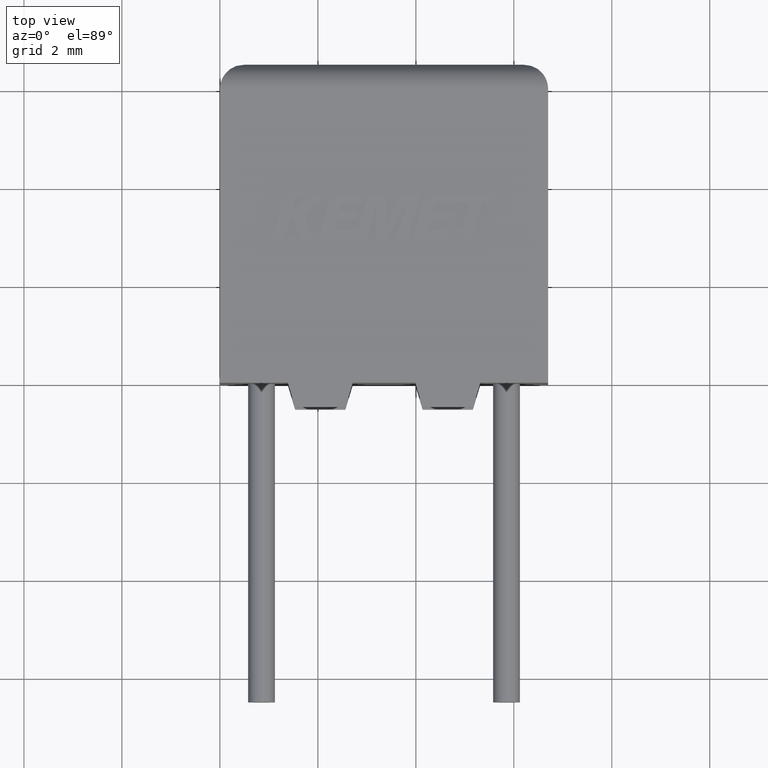
[diagram: clean part render]
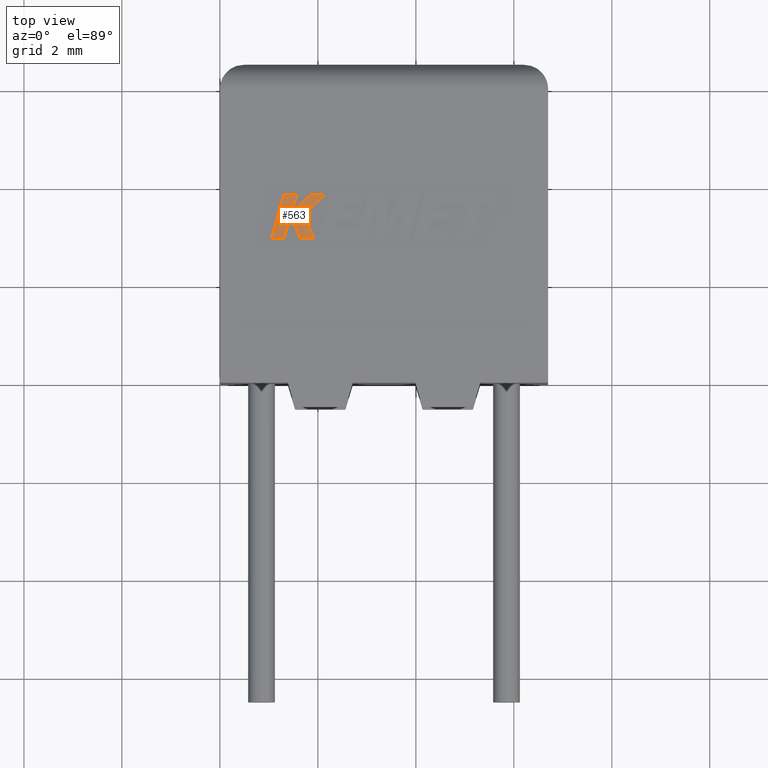
[diagram: same view with one face highlighted and labeled with its STEP entity id]
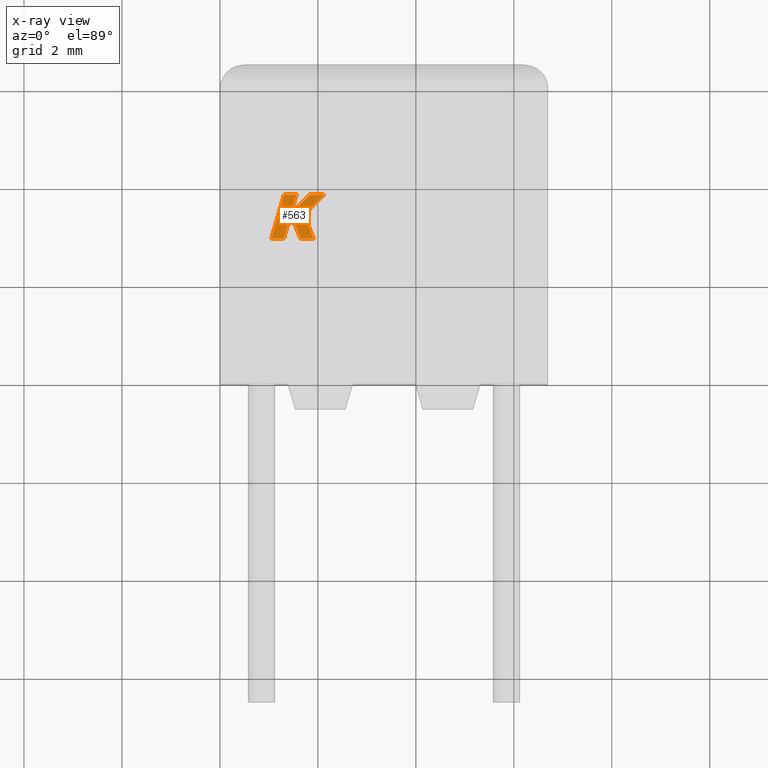
[diagram: x-ray of the same camera — body ghosted, the highlighted face saturated]
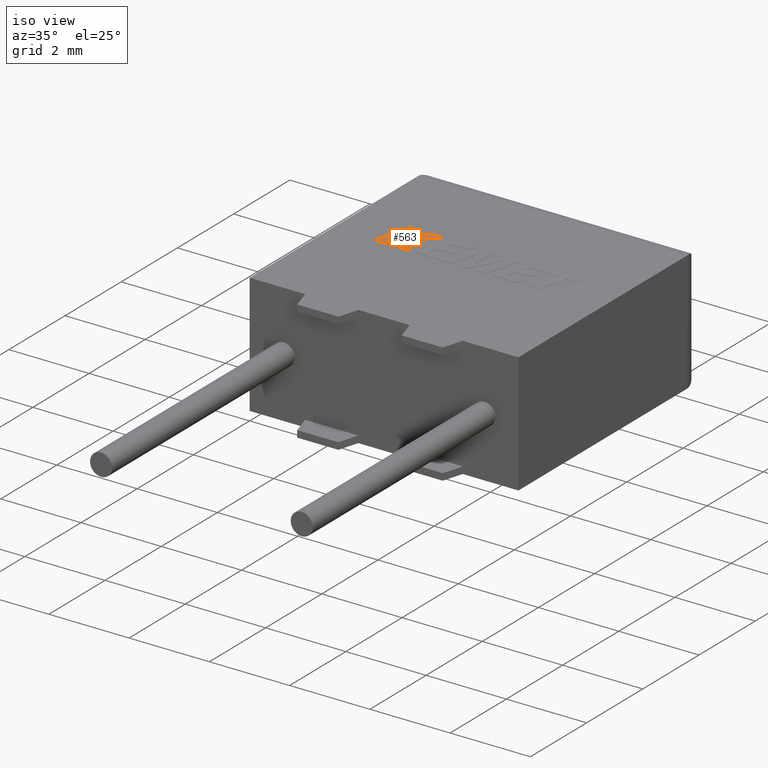
[diagram: same view with one face highlighted and labeled with its STEP entity id]
A machine part, top view. The second image highlights one B-rep face of the part: STEP entity #563.
The next image is the same camera in x-ray: the body ghosted, the highlighted face saturated — about 0% of this face is hidden behind the body in this view.
A second angle (iso view) of the same face is appended — the face is thin or edge-on in the first view.
In plain terms, the highlighted planar face has unit normal (0, 0, -1).
Its self-contained STEP definition (entity closure, byte-faithful):
#11 = LINE ( 'NONE', #1741, #1677 ) ;
#25 = CARTESIAN_POINT ( 'NONE',  ( 1.713488078699167971, 3.428922874861866532, 3.004999999999999893 ) ) ;
#111 = VECTOR ( 'NONE', #2841, 1000.000000000000000 ) ;
#282 = CARTESIAN_POINT ( 'NONE',  ( 1.564885494954421086, 3.840497543485195120, 3.004999999999999893 ) ) ;
#285 = ORIENTED_EDGE ( 'NONE', *, *, #1253, .T. ) ;
#339 = LINE ( 'NONE', #3102, #111 ) ;
#350 = EDGE_CURVE ( 'NONE', #2085, #1123, #1783, .T. ) ;
#429 = VERTEX_POINT ( 'NONE', #1298 ) ;
#477 = LINE ( 'NONE', #1754, #2556 ) ;
#522 = ORIENTED_EDGE ( 'NONE', *, *, #588, .T. ) ;
#531 = CARTESIAN_POINT ( 'NONE',  ( 1.308468682352539103, 3.840497543485195120, 3.004999999999999893 ) ) ;
#563 = ADVANCED_FACE ( 'NONE', ( #1038 ), #748, .F. ) ;
#588 = EDGE_CURVE ( 'NONE', #2454, #1355, #1221, .T. ) ;
#649 = LINE ( 'NONE', #1084, #1684 ) ;
#650 = VERTEX_POINT ( 'NONE', #1875 ) ;
#685 = CARTESIAN_POINT ( 'NONE',  ( 1.837528932128959847, 3.840497543485195120, 3.004999999999999893 ) ) ;
#702 = DIRECTION ( 'NONE',  ( -1.000000000000000000, -0.000000000000000000, -0.000000000000000000 ) ) ;
#748 = PLANE ( 'NONE',  #2239 ) ;
#804 = CARTESIAN_POINT ( 'NONE',  ( 1.445891160101746786, 3.428922874861855874, 3.004999999999999893 ) ) ;
#834 = CARTESIAN_POINT ( 'NONE',  ( 1.564885494954421086, 3.840497543485195120, 3.004999999999999893 ) ) ;
#932 = VECTOR ( 'NONE', #1488, 1000.000000000000114 ) ;
#1016 = DIRECTION ( 'NONE',  ( 1.000000000000000000, -1.089306025555442626E-13, 0.000000000000000000 ) ) ;
#1021 = CARTESIAN_POINT ( 'NONE',  ( 0.03041219601240493370, -2.057123217232910584, 3.004999999999999893 ) ) ;
#1036 = ORIENTED_EDGE ( 'NONE', *, *, #2603, .T. ) ;
#1038 = FACE_OUTER_BOUND ( 'NONE', #1400, .T. ) ;
#1047 = CARTESIAN_POINT ( 'NONE',  ( 1.916170284380197764, 2.939949999999972530, 3.004999999999999893 ) ) ;
#1054 = VECTOR ( 'NONE', #1810, 1000.000000000000000 ) ;
#1084 = CARTESIAN_POINT ( 'NONE',  ( 2.133890732794469614, 3.840497543485195120, 3.004999999999999893 ) ) ;
#1116 = DIRECTION ( 'NONE',  ( -0.7059037656364501867, -0.7083077534943970077, -0.000000000000000000 ) ) ;
#1123 = VERTEX_POINT ( 'NONE', #3173 ) ;
#1144 = VECTOR ( 'NONE', #1832, 1000.000000000000000 ) ;
#1177 = CARTESIAN_POINT ( 'NONE',  ( 2.133890732794469614, 3.840497543485195120, 3.004999999999999893 ) ) ;
#1221 = LINE ( 'NONE', #282, #932 ) ;
#1253 = EDGE_CURVE ( 'NONE', #2228, #2085, #477, .T. ) ;
#1271 = DIRECTION ( 'NONE',  ( -1.000000000000000000, 0.000000000000000000, 0.000000000000000000 ) ) ;
#1298 = CARTESIAN_POINT ( 'NONE',  ( 1.305741425795165611, 2.939949999999972530, 3.004999999999999893 ) ) ;
#1338 = DIRECTION ( 'NONE',  ( 0.7145695586381818343, 0.6995643972270416677, 0.000000000000000000 ) ) ;
#1355 = VERTEX_POINT ( 'NONE', #834 ) ;
#1400 = EDGE_LOOP ( 'NONE', ( #1036, #2579, #2362, #285, #2835, #1513, #1772, #1407, #3079, #522, #3051 ) ) ;
#1407 = ORIENTED_EDGE ( 'NONE', *, *, #1847, .T. ) ;
#1488 = DIRECTION ( 'NONE',  ( 0.2755520632520599977, 0.9612861490927312458, 0.000000000000000000 ) ) ;
#1513 = ORIENTED_EDGE ( 'NONE', *, *, #3193, .T. ) ;
#1521 = VECTOR ( 'NONE', #1116, 1000.000000000000114 ) ;
#1534 = CARTESIAN_POINT ( 'NONE',  ( 1.049666889999999686, 2.939950000000000063, 3.004999999999999893 ) ) ;
#1567 = LINE ( 'NONE', #2562, #1521 ) ;
#1677 = VECTOR ( 'NONE', #1016, 1000.000000000000000 ) ;
#1684 = VECTOR ( 'NONE', #1338, 1000.000000000000114 ) ;
#1701 = LINE ( 'NONE', #1534, #1144 ) ;
#1721 = VECTOR ( 'NONE', #2304, 1000.000000000000000 ) ;
#1731 = LINE ( 'NONE', #3218, #3134 ) ;
#1732 = CARTESIAN_POINT ( 'NONE',  ( 1.445891160101746786, 3.428922874861855874, 3.004999999999999893 ) ) ;
#1741 = CARTESIAN_POINT ( 'NONE',  ( 1.305741425795165611, 2.939949999999972530, 3.004999999999999893 ) ) ;
#1747 = LINE ( 'NONE', #1732, #1947 ) ;
#1754 = CARTESIAN_POINT ( 'NONE',  ( 1.642163219288518494, 2.939949999999972530, 3.004999999999999893 ) ) ;
#1772 = ORIENTED_EDGE ( 'NONE', *, *, #3108, .T. ) ;
#1783 = LINE ( 'NONE', #1047, #1721 ) ;
#1810 = DIRECTION ( 'NONE',  ( -1.000000000000000000, -0.000000000000000000, -0.000000000000000000 ) ) ;
#1832 = DIRECTION ( 'NONE',  ( -0.2762033010252004095, -0.9610992334315862085, -0.000000000000000000 ) ) ;
#1847 = EDGE_CURVE ( 'NONE', #2438, #2730, #1731, .T. ) ;
#1875 = CARTESIAN_POINT ( 'NONE',  ( 1.049666889999999686, 2.939950000000000063, 3.004999999999999893 ) ) ;
#1903 = CARTESIAN_POINT ( 'NONE',  ( 1.642163219288518494, 2.939949999999972530, 3.004999999999999893 ) ) ;
#1933 = CARTESIAN_POINT ( 'NONE',  ( 1.454804030040234952, 3.456469254076067088, 3.004999999999999893 ) ) ;
#1947 = VECTOR ( 'NONE', #2236, 1000.000000000000114 ) ;
#2021 = DIRECTION ( 'NONE',  ( 0.000000000000000000, 0.000000000000000000, -1.000000000000000000 ) ) ;
#2085 = VERTEX_POINT ( 'NONE', #1903 ) ;
#2163 = VERTEX_POINT ( 'NONE', #25 ) ;
#2176 = EDGE_CURVE ( 'NONE', #650, #429, #11, .T. ) ;
#2228 = VERTEX_POINT ( 'NONE', #804 ) ;
#2236 = DIRECTION ( 'NONE',  ( 0.2755265765475173323, 0.9612934544747535615, 0.000000000000000000 ) ) ;
#2239 = AXIS2_PLACEMENT_3D ( 'NONE', #1021, #2021, #1271 ) ;
#2259 = DIRECTION ( 'NONE',  ( 0.3725077383644744278, -0.9280290862136727492, 0.000000000000000000 ) ) ;
#2281 = LINE ( 'NONE', #531, #1054 ) ;
#2304 = DIRECTION ( 'NONE',  ( 1.000000000000000000, 0.000000000000000000, 0.000000000000000000 ) ) ;
#2346 = VERTEX_POINT ( 'NONE', #2596 ) ;
#2362 = ORIENTED_EDGE ( 'NONE', *, *, #2809, .T. ) ;
#2438 = VERTEX_POINT ( 'NONE', #1177 ) ;
#2454 = VERTEX_POINT ( 'NONE', #1933 ) ;
#2556 = VECTOR ( 'NONE', #2259, 999.9999999999998863 ) ;
#2562 = CARTESIAN_POINT ( 'NONE',  ( 1.454804030040234952, 3.456469254076067088, 3.004999999999999893 ) ) ;
#2579 = ORIENTED_EDGE ( 'NONE', *, *, #2176, .T. ) ;
#2596 = CARTESIAN_POINT ( 'NONE',  ( 1.308468682352539103, 3.840497543485195120, 3.004999999999999893 ) ) ;
#2603 = EDGE_CURVE ( 'NONE', #2346, #650, #1701, .T. ) ;
#2715 = EDGE_CURVE ( 'NONE', #2730, #2454, #1567, .T. ) ;
#2730 = VERTEX_POINT ( 'NONE', #685 ) ;
#2809 = EDGE_CURVE ( 'NONE', #429, #2228, #1747, .T. ) ;
#2835 = ORIENTED_EDGE ( 'NONE', *, *, #350, .T. ) ;
#2841 = DIRECTION ( 'NONE',  ( -0.3829140317376951708, 0.9237839814038687480, 0.000000000000000000 ) ) ;
#2965 = EDGE_CURVE ( 'NONE', #1355, #2346, #2281, .T. ) ;
#3051 = ORIENTED_EDGE ( 'NONE', *, *, #2965, .T. ) ;
#3079 = ORIENTED_EDGE ( 'NONE', *, *, #2715, .T. ) ;
#3102 = CARTESIAN_POINT ( 'NONE',  ( 1.713488078699167971, 3.428922874861866532, 3.004999999999999893 ) ) ;
#3108 = EDGE_CURVE ( 'NONE', #2163, #2438, #649, .T. ) ;
#3134 = VECTOR ( 'NONE', #702, 1000.000000000000000 ) ;
#3173 = CARTESIAN_POINT ( 'NONE',  ( 1.916170284380197764, 2.939949999999972530, 3.004999999999999893 ) ) ;
#3193 = EDGE_CURVE ( 'NONE', #1123, #2163, #339, .T. ) ;
#3218 = CARTESIAN_POINT ( 'NONE',  ( 1.837528932128959847, 3.840497543485195120, 3.004999999999999893 ) ) ;